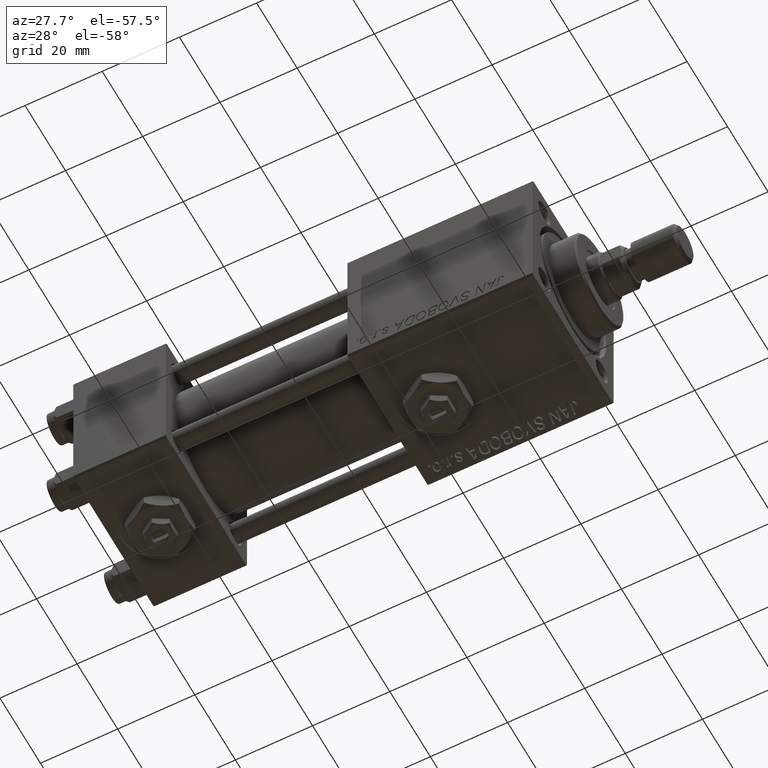
[diagram: clean part render]
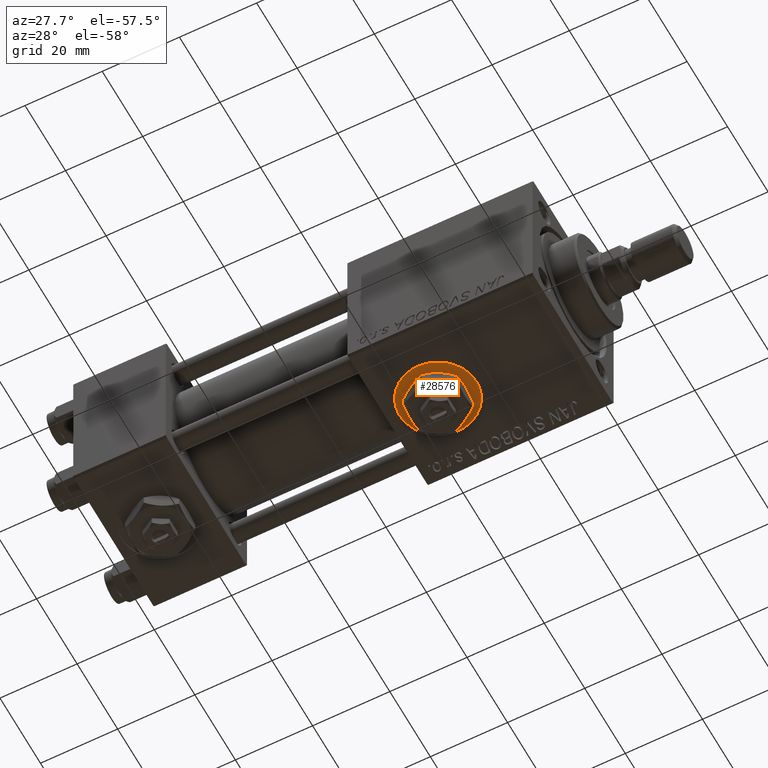
[diagram: same view with one face highlighted and labeled with its STEP entity id]
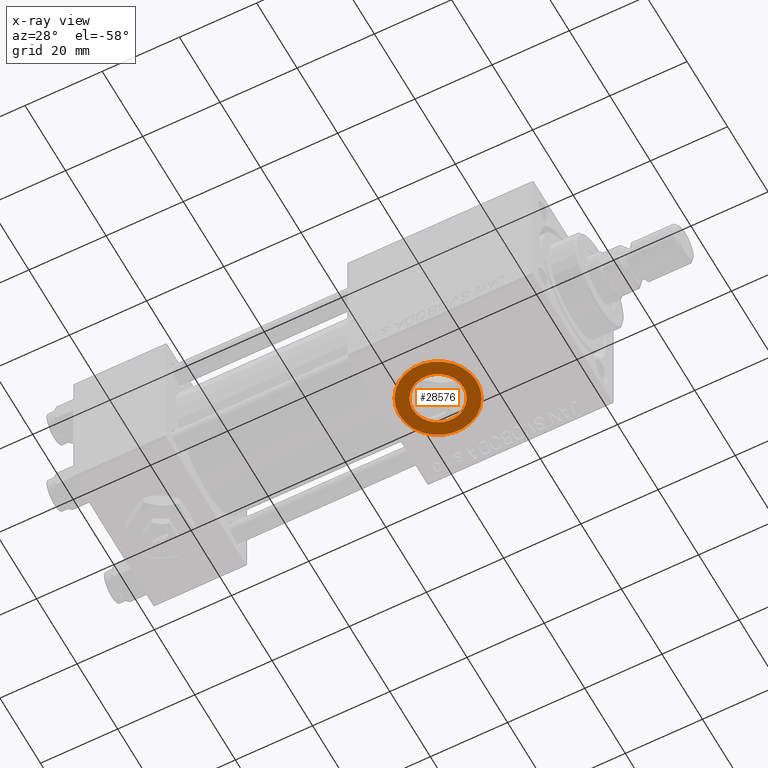
[diagram: x-ray of the same camera — body ghosted, the highlighted face saturated]
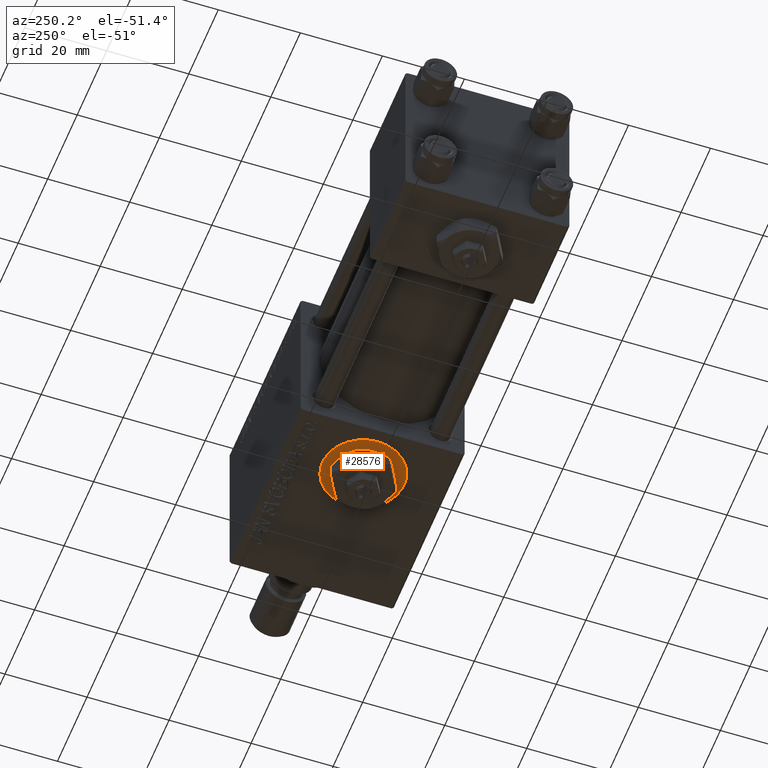
[diagram: same view with one face highlighted and labeled with its STEP entity id]
A machine part, auxiliary view. The second image highlights one B-rep face of the part: STEP entity #28576.
The next image is the same camera in x-ray: the body ghosted, the highlighted face saturated — about 0% of this face is hidden behind the body in this view.
A second angle (auxiliary view) of the same face is appended — the face is thin or edge-on in the first view.
In plain terms, the highlighted planar face has unit normal (0, 0, -1).
Its self-contained STEP definition (entity closure, byte-faithful):
#638 = CARTESIAN_POINT ( 'NONE',  ( 94.00000000000001421, 1.224646799147354440E-15, -19.80000000000000071 ) ) ;
#942 = ORIENTED_EDGE ( 'NONE', *, *, #18954, .T. ) ;
#980 = AXIS2_PLACEMENT_3D ( 'NONE', #15245, #18449, #26434 ) ;
#1518 = CARTESIAN_POINT ( 'NONE',  ( 74.00000000000000000, 0.000000000000000000, -19.80000000000000071 ) ) ;
#1995 = EDGE_LOOP ( 'NONE', ( #942, #23529 ) ) ;
#2478 = CIRCLE ( 'NONE', #42392, 10.00000000000000888 ) ;
#5152 = DIRECTION ( 'NONE',  ( -1.000000000000000000, 0.000000000000000000, 0.000000000000000000 ) ) ;
#6231 = FACE_OUTER_BOUND ( 'NONE', #1995, .T. ) ;
#7441 = CIRCLE ( 'NONE', #22752, 6.580000000000002736 ) ;
#10222 = PLANE ( 'NONE',  #980 ) ;
#11124 = VERTEX_POINT ( 'NONE', #37404 ) ;
#13038 = EDGE_LOOP ( 'NONE', ( #44576, #42944 ) ) ;
#13660 = CARTESIAN_POINT ( 'NONE',  ( 84.00000000000000000, 0.000000000000000000, -19.80000000000000071 ) ) ;
#13729 = CARTESIAN_POINT ( 'NONE',  ( 84.00000000000000000, 0.000000000000000000, -19.80000000000000071 ) ) ;
#15245 = CARTESIAN_POINT ( 'NONE',  ( 84.00000000000000000, 0.000000000000000000, -19.80000000000000071 ) ) ;
#16009 = EDGE_CURVE ( 'NONE', #41653, #11124, #7441, .T. ) ;
#18127 = VERTEX_POINT ( 'NONE', #638 ) ;
#18449 = DIRECTION ( 'NONE',  ( 0.000000000000000000, 0.000000000000000000, -1.000000000000000000 ) ) ;
#18954 = EDGE_CURVE ( 'NONE', #25516, #18127, #2478, .T. ) ;
#20046 = CARTESIAN_POINT ( 'NONE',  ( 84.00000000000000000, 0.000000000000000000, -19.80000000000000071 ) ) ;
#22707 = FACE_BOUND ( 'NONE', #13038, .T. ) ;
#22752 = AXIS2_PLACEMENT_3D ( 'NONE', #13660, #49859, #5152 ) ;
#23529 = ORIENTED_EDGE ( 'NONE', *, *, #32286, .T. ) ;
#25101 = DIRECTION ( 'NONE',  ( 0.000000000000000000, 0.000000000000000000, -1.000000000000000000 ) ) ;
#25516 = VERTEX_POINT ( 'NONE', #1518 ) ;
#25967 = DIRECTION ( 'NONE',  ( -1.000000000000000000, 0.000000000000000000, 0.000000000000000000 ) ) ;
#26434 = DIRECTION ( 'NONE',  ( -1.000000000000000000, 0.000000000000000000, -0.000000000000000000 ) ) ;
#28352 = CARTESIAN_POINT ( 'NONE',  ( 84.00000000000000000, 0.000000000000000000, -19.80000000000000071 ) ) ;
#28576 = ADVANCED_FACE ( 'NONE', ( #22707, #6231 ), #10222, .T. ) ;
#32286 = EDGE_CURVE ( 'NONE', #18127, #25516, #49526, .T. ) ;
#34375 = CIRCLE ( 'NONE', #49632, 6.580000000000002736 ) ;
#35566 = DIRECTION ( 'NONE',  ( -1.000000000000000000, 0.000000000000000000, 0.000000000000000000 ) ) ;
#35912 = AXIS2_PLACEMENT_3D ( 'NONE', #13729, #45136, #25967 ) ;
#36290 = DIRECTION ( 'NONE',  ( -1.000000000000000000, 0.000000000000000000, 0.000000000000000000 ) ) ;
#37404 = CARTESIAN_POINT ( 'NONE',  ( 77.42000000000000171, 0.000000000000000000, -19.80000000000000071 ) ) ;
#40694 = CARTESIAN_POINT ( 'NONE',  ( 90.58000000000001251, 8.058175938389587461E-16, -19.80000000000000071 ) ) ;
#41653 = VERTEX_POINT ( 'NONE', #40694 ) ;
#42392 = AXIS2_PLACEMENT_3D ( 'NONE', #20046, #25101, #36290 ) ;
#42944 = ORIENTED_EDGE ( 'NONE', *, *, #16009, .F. ) ;
#44576 = ORIENTED_EDGE ( 'NONE', *, *, #50877, .F. ) ;
#44594 = DIRECTION ( 'NONE',  ( 0.000000000000000000, 0.000000000000000000, -1.000000000000000000 ) ) ;
#45136 = DIRECTION ( 'NONE',  ( 0.000000000000000000, 0.000000000000000000, -1.000000000000000000 ) ) ;
#49526 = CIRCLE ( 'NONE', #35912, 10.00000000000000888 ) ;
#49632 = AXIS2_PLACEMENT_3D ( 'NONE', #28352, #44594, #35566 ) ;
#49859 = DIRECTION ( 'NONE',  ( 0.000000000000000000, 0.000000000000000000, -1.000000000000000000 ) ) ;
#50877 = EDGE_CURVE ( 'NONE', #11124, #41653, #34375, .T. ) ;